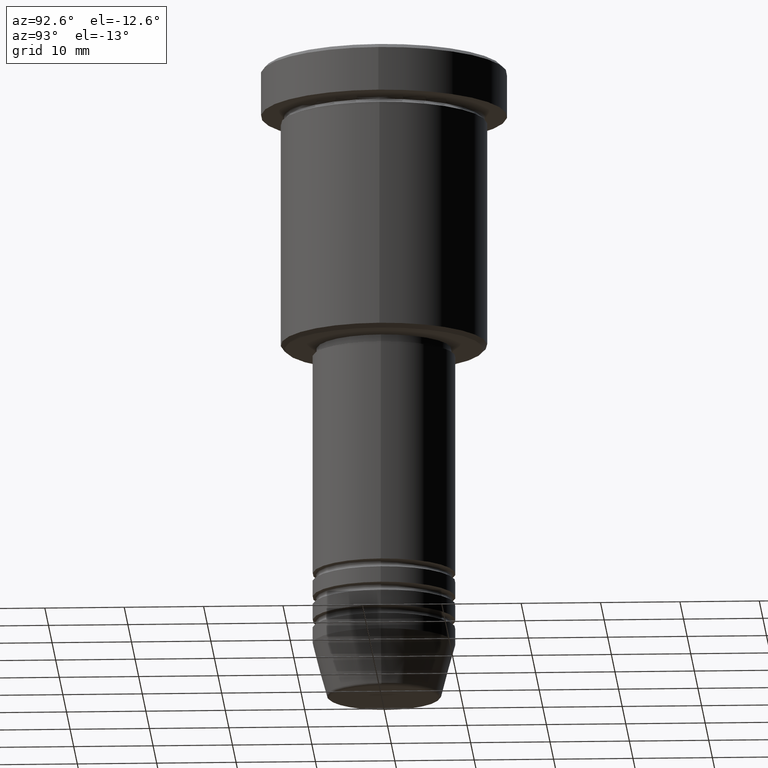
[diagram: clean part render]
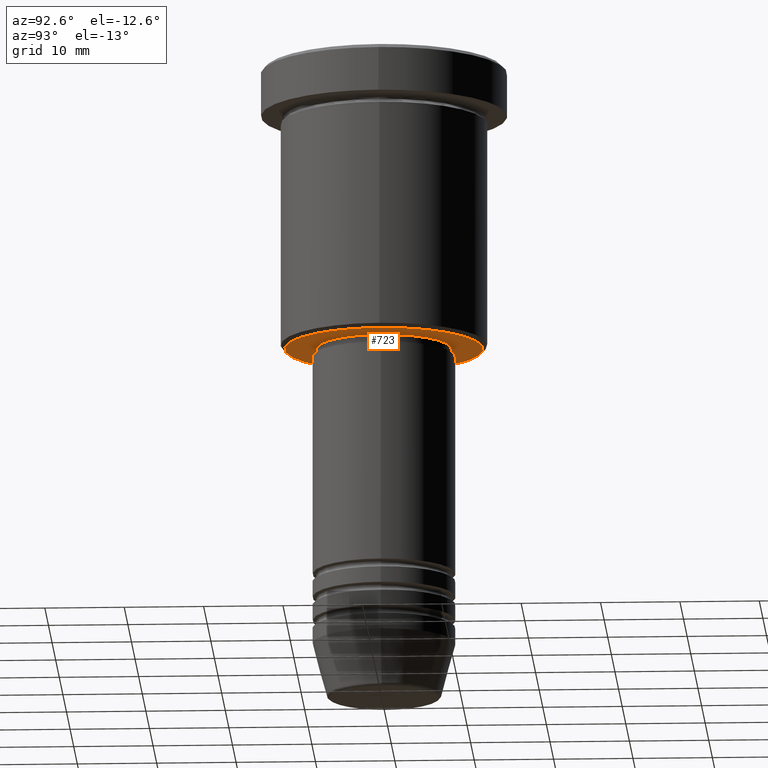
[diagram: same view with one face highlighted and labeled with its STEP entity id]
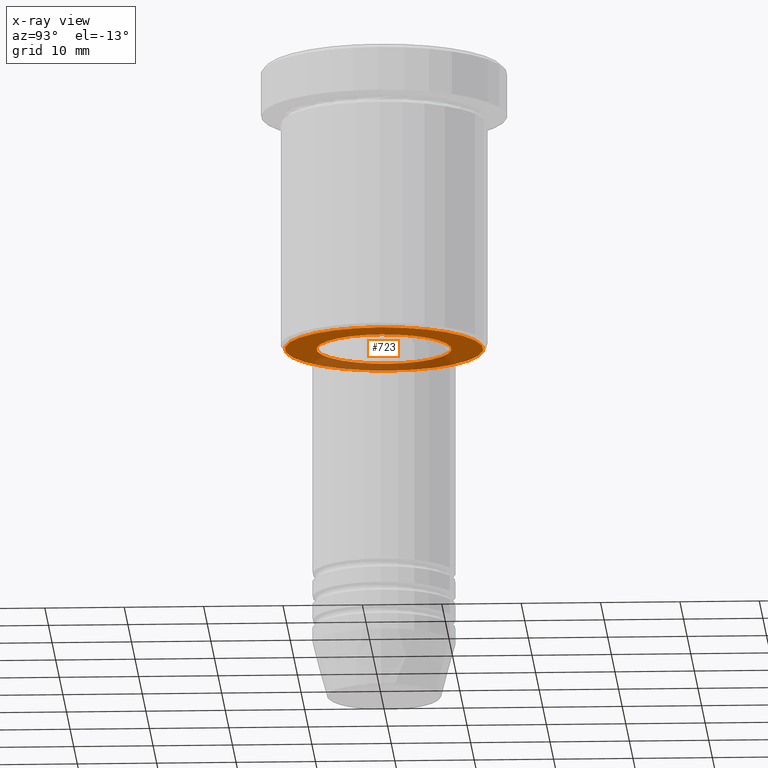
[diagram: x-ray of the same camera — body ghosted, the highlighted face saturated]
A machine part, auxiliary view. The second image highlights one B-rep face of the part: STEP entity #723.
The next image is the same camera in x-ray: the body ghosted, the highlighted face saturated — about 29% of this face is hidden behind the body in this view.
In plain terms, the highlighted planar face has unit normal (0, 0, -1).
Its self-contained STEP definition (entity closure, byte-faithful):
#3 = DIRECTION ( 'NONE',  ( -1.000000000000000000, 0.000000000000000000, -0.000000000000000000 ) ) ;
#7 = DIRECTION ( 'NONE',  ( -0.000000000000000000, -0.000000000000000000, 1.000000000000000000 ) ) ;
#21 = ORIENTED_EDGE ( 'NONE', *, *, #523, .T. ) ;
#46 = EDGE_LOOP ( 'NONE', ( #236, #939 ) ) ;
#59 = CARTESIAN_POINT ( 'NONE',  ( 0.000000000000000000, 0.000000000000000000, -36.00000000000000711 ) ) ;
#69 = VERTEX_POINT ( 'NONE', #172 ) ;
#112 = CARTESIAN_POINT ( 'NONE',  ( 0.000000000000000000, 13.00000000000000000, -36.00000000000000711 ) ) ;
#113 = CARTESIAN_POINT ( 'NONE',  ( 0.000000000000000000, 0.000000000000000000, -36.00000000000000711 ) ) ;
#127 = AXIS2_PLACEMENT_3D ( 'NONE', #356, #637, #915 ) ;
#172 = CARTESIAN_POINT ( 'NONE',  ( -12.49999999999996980, 1.561424668912873336E-15, -36.00000000000000711 ) ) ;
#177 = AXIS2_PLACEMENT_3D ( 'NONE', #59, #427, #629 ) ;
#184 = VERTEX_POINT ( 'NONE', #659 ) ;
#236 = ORIENTED_EDGE ( 'NONE', *, *, #752, .T. ) ;
#251 = CIRCLE ( 'NONE', #604, 8.499999999999998224 ) ;
#253 = EDGE_CURVE ( 'NONE', #513, #184, #251, .T. ) ;
#264 = CARTESIAN_POINT ( 'NONE',  ( -8.499999999999998224, 1.040949779275249943E-15, -36.00000000000000711 ) ) ;
#269 = DIRECTION ( 'NONE',  ( 1.000000000000000000, 0.000000000000000000, 0.000000000000000000 ) ) ;
#292 = FACE_BOUND ( 'NONE', #46, .T. ) ;
#356 = CARTESIAN_POINT ( 'NONE',  ( 0.000000000000000000, 0.000000000000000000, -36.00000000000000711 ) ) ;
#388 = CIRCLE ( 'NONE', #177, 12.49999999999996980 ) ;
#427 = DIRECTION ( 'NONE',  ( 0.000000000000000000, 0.000000000000000000, -1.000000000000000000 ) ) ;
#480 = DIRECTION ( 'NONE',  ( -0.000000000000000000, -0.000000000000000000, 1.000000000000000000 ) ) ;
#513 = VERTEX_POINT ( 'NONE', #264 ) ;
#516 = CIRCLE ( 'NONE', #127, 12.49999999999996980 ) ;
#523 = EDGE_CURVE ( 'NONE', #69, #764, #388, .T. ) ;
#526 = DIRECTION ( 'NONE',  ( 0.000000000000000000, 0.000000000000000000, -1.000000000000000000 ) ) ;
#578 = EDGE_LOOP ( 'NONE', ( #586, #21 ) ) ;
#586 = ORIENTED_EDGE ( 'NONE', *, *, #830, .T. ) ;
#603 = CARTESIAN_POINT ( 'NONE',  ( 12.49999999999996980, 0.000000000000000000, -36.00000000000000711 ) ) ;
#604 = AXIS2_PLACEMENT_3D ( 'NONE', #821, #7, #269 ) ;
#629 = DIRECTION ( 'NONE',  ( -1.000000000000000000, 0.000000000000000000, 0.000000000000000000 ) ) ;
#637 = DIRECTION ( 'NONE',  ( 0.000000000000000000, 0.000000000000000000, -1.000000000000000000 ) ) ;
#659 = CARTESIAN_POINT ( 'NONE',  ( 8.499999999999998224, 0.000000000000000000, -36.00000000000000711 ) ) ;
#723 = ADVANCED_FACE ( 'NONE', ( #751, #292 ), #937, .T. ) ;
#737 = AXIS2_PLACEMENT_3D ( 'NONE', #113, #480, #858 ) ;
#751 = FACE_OUTER_BOUND ( 'NONE', #578, .T. ) ;
#752 = EDGE_CURVE ( 'NONE', #184, #513, #1097, .T. ) ;
#764 = VERTEX_POINT ( 'NONE', #603 ) ;
#821 = CARTESIAN_POINT ( 'NONE',  ( 0.000000000000000000, 0.000000000000000000, -36.00000000000000711 ) ) ;
#830 = EDGE_CURVE ( 'NONE', #764, #69, #516, .T. ) ;
#858 = DIRECTION ( 'NONE',  ( 1.000000000000000000, 0.000000000000000000, 0.000000000000000000 ) ) ;
#915 = DIRECTION ( 'NONE',  ( -1.000000000000000000, 0.000000000000000000, 0.000000000000000000 ) ) ;
#937 = PLANE ( 'NONE',  #951 ) ;
#939 = ORIENTED_EDGE ( 'NONE', *, *, #253, .T. ) ;
#951 = AXIS2_PLACEMENT_3D ( 'NONE', #112, #526, #3 ) ;
#1097 = CIRCLE ( 'NONE', #737, 8.499999999999998224 ) ;